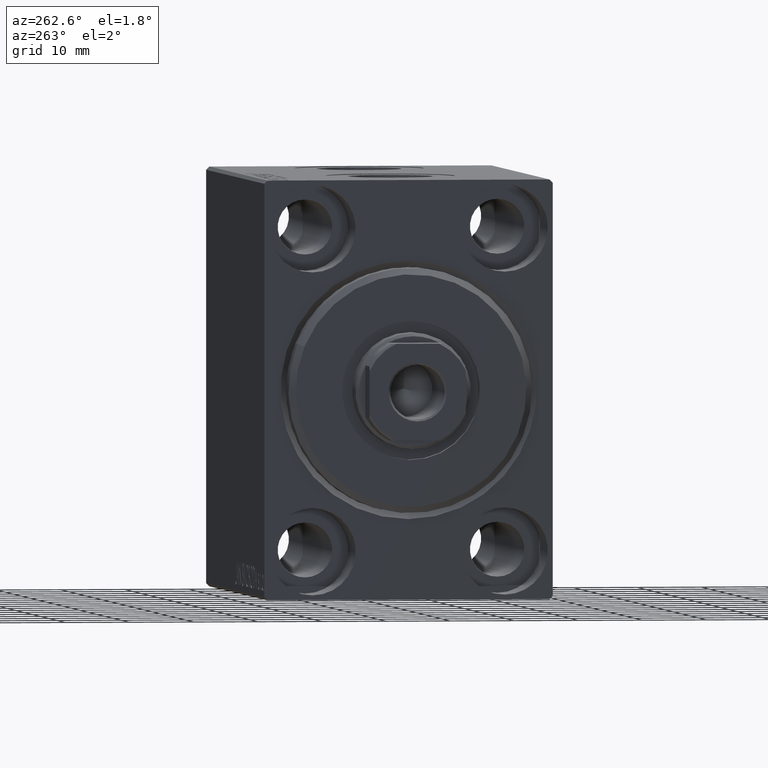
[diagram: clean part render]
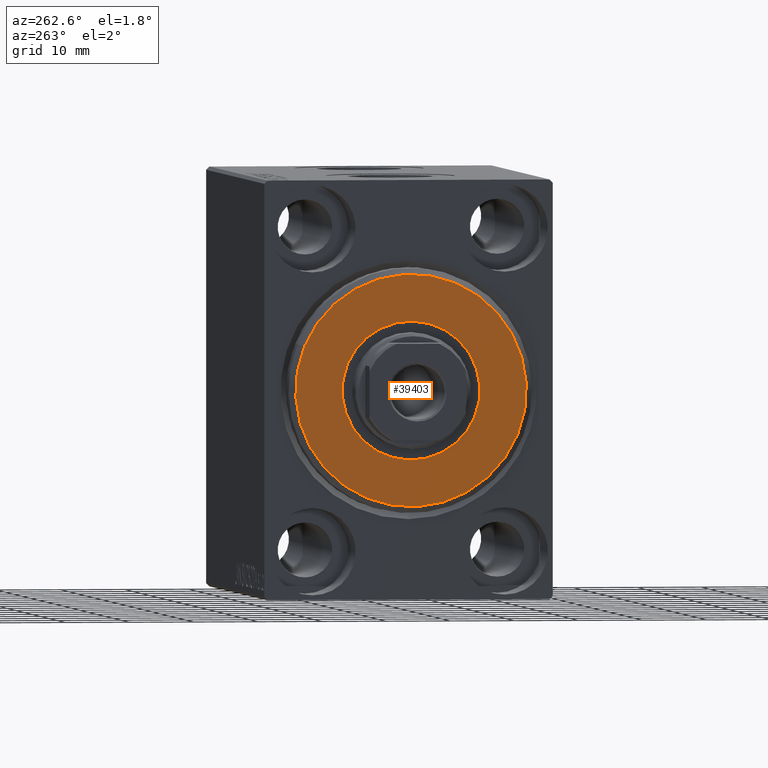
[diagram: same view with one face highlighted and labeled with its STEP entity id]
A machine part, auxiliary view. The second image highlights one B-rep face of the part: STEP entity #39403.
In plain terms, the highlighted planar face has unit normal (-1, 0, 0).
Its self-contained STEP definition (entity closure, byte-faithful):
#47 = VERTEX_POINT ( 'NONE', #22206 ) ;
#1632 = PLANE ( 'NONE',  #20269 ) ;
#1675 = DIRECTION ( 'NONE',  ( 0.000000000000000000, 0.000000000000000000, -1.000000000000000000 ) ) ;
#1919 = CARTESIAN_POINT ( 'NONE',  ( 3.000000000000000000, 0.000000000000000000, 0.000000000000000000 ) ) ;
#2058 = EDGE_CURVE ( 'NONE', #8928, #24940, #22126, .T. ) ;
#2960 = AXIS2_PLACEMENT_3D ( 'NONE', #25918, #5458, #1675 ) ;
#4811 = ORIENTED_EDGE ( 'NONE', *, *, #32053, .T. ) ;
#5458 = DIRECTION ( 'NONE',  ( -1.000000000000000000, 0.000000000000000000, -0.000000000000000000 ) ) ;
#6045 = EDGE_LOOP ( 'NONE', ( #14141, #27938 ) ) ;
#8451 = CARTESIAN_POINT ( 'NONE',  ( 3.000000000000000000, 0.000000000000000000, 0.000000000000000000 ) ) ;
#8570 = DIRECTION ( 'NONE',  ( 1.000000000000000000, -0.000000000000000000, 0.000000000000000000 ) ) ;
#8928 = VERTEX_POINT ( 'NONE', #37085 ) ;
#10261 = AXIS2_PLACEMENT_3D ( 'NONE', #8451, #21817, #42289 ) ;
#12991 = EDGE_CURVE ( 'NONE', #40604, #47, #23053, .T. ) ;
#14141 = ORIENTED_EDGE ( 'NONE', *, *, #12991, .T. ) ;
#15116 = EDGE_CURVE ( 'NONE', #47, #40604, #35845, .T. ) ;
#16990 = DIRECTION ( 'NONE',  ( 0.000000000000000000, 0.000000000000000000, -1.000000000000000000 ) ) ;
#18328 = DIRECTION ( 'NONE',  ( 0.000000000000000000, 0.000000000000000000, -1.000000000000000000 ) ) ;
#18765 = FACE_OUTER_BOUND ( 'NONE', #6045, .T. ) ;
#20103 = AXIS2_PLACEMENT_3D ( 'NONE', #20329, #33921, #16990 ) ;
#20269 = AXIS2_PLACEMENT_3D ( 'NONE', #38791, #32343, #18328 ) ;
#20329 = CARTESIAN_POINT ( 'NONE',  ( 3.000000000000000000, 0.000000000000000000, 0.000000000000000000 ) ) ;
#21817 = DIRECTION ( 'NONE',  ( 1.000000000000000000, -0.000000000000000000, 0.000000000000000000 ) ) ;
#21903 = ORIENTED_EDGE ( 'NONE', *, *, #2058, .T. ) ;
#22126 = CIRCLE ( 'NONE', #2960, 10.75000000000000000 ) ;
#22154 = DIRECTION ( 'NONE',  ( 0.000000000000000000, 0.000000000000000000, -1.000000000000000000 ) ) ;
#22206 = CARTESIAN_POINT ( 'NONE',  ( 3.000000000000000000, 2.265596578422603002E-15, -17.99999999999999645 ) ) ;
#23053 = CIRCLE ( 'NONE', #10261, 17.99999999999999645 ) ;
#23670 = EDGE_LOOP ( 'NONE', ( #4811, #21903 ) ) ;
#24940 = VERTEX_POINT ( 'NONE', #41583 ) ;
#25435 = FACE_BOUND ( 'NONE', #23670, .T. ) ;
#25918 = CARTESIAN_POINT ( 'NONE',  ( 3.000000000000000000, 0.000000000000000000, 0.000000000000000000 ) ) ;
#27394 = CARTESIAN_POINT ( 'NONE',  ( 3.000000000000000000, 0.000000000000000000, 17.99999999999999645 ) ) ;
#27938 = ORIENTED_EDGE ( 'NONE', *, *, #15116, .T. ) ;
#29349 = CIRCLE ( 'NONE', #20103, 10.75000000000000000 ) ;
#32053 = EDGE_CURVE ( 'NONE', #24940, #8928, #29349, .T. ) ;
#32343 = DIRECTION ( 'NONE',  ( 1.000000000000000000, -0.000000000000000000, 0.000000000000000000 ) ) ;
#33921 = DIRECTION ( 'NONE',  ( -1.000000000000000000, 0.000000000000000000, -0.000000000000000000 ) ) ;
#35845 = CIRCLE ( 'NONE', #41548, 17.99999999999999645 ) ;
#37085 = CARTESIAN_POINT ( 'NONE',  ( 3.000000000000000000, 1.316495309083404223E-15, -10.75000000000000000 ) ) ;
#38791 = CARTESIAN_POINT ( 'NONE',  ( 3.000000000000000000, 0.000000000000000000, 0.000000000000000000 ) ) ;
#39403 = ADVANCED_FACE ( 'NONE', ( #18765, #25435 ), #1632, .T. ) ;
#40604 = VERTEX_POINT ( 'NONE', #27394 ) ;
#41548 = AXIS2_PLACEMENT_3D ( 'NONE', #1919, #8570, #22154 ) ;
#41583 = CARTESIAN_POINT ( 'NONE',  ( 3.000000000000000000, 0.000000000000000000, 10.75000000000000000 ) ) ;
#42289 = DIRECTION ( 'NONE',  ( 0.000000000000000000, 0.000000000000000000, -1.000000000000000000 ) ) ;